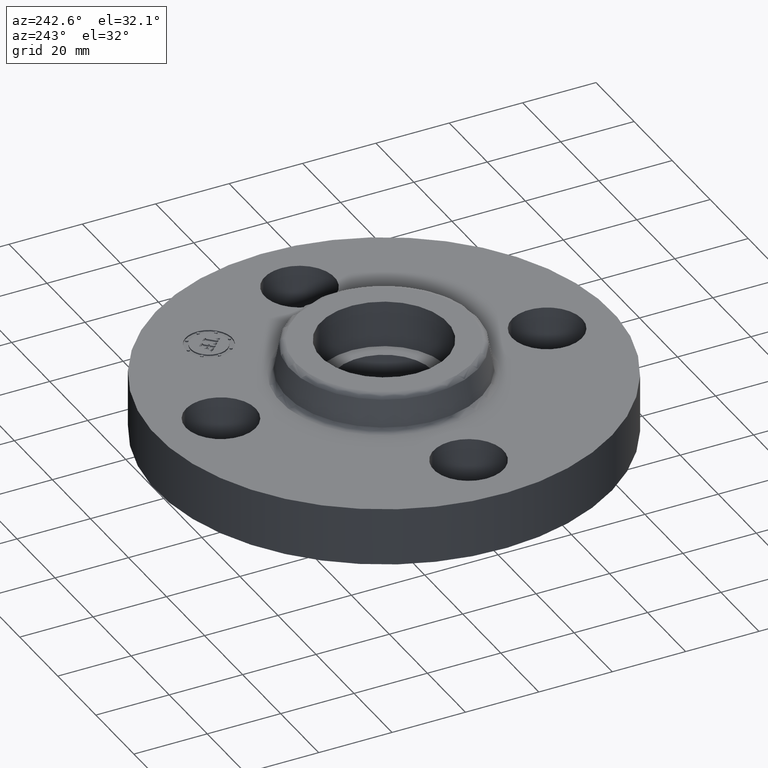
[diagram: clean part render]
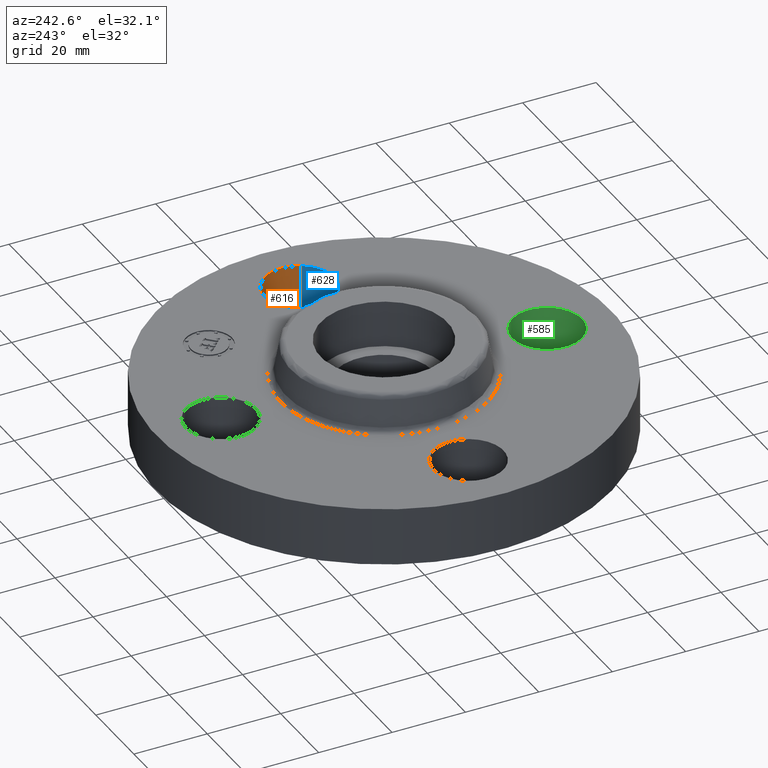
[diagram: same view with three faces highlighted in distinct colors, each labeled with its STEP entity id]
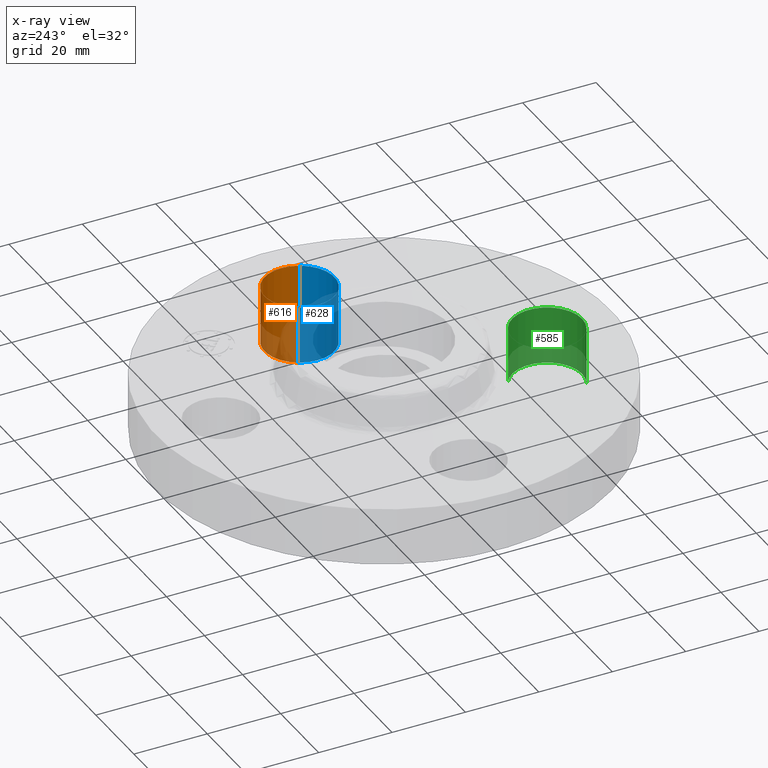
[diagram: x-ray of the same camera — body ghosted, the three highlighted faces saturated]
A machine part, auxiliary view with three faces highlighted in distinct colors.
The next image is the same camera in x-ray (body ghosted, the three faces saturated) — at least one of them is partly hidden behind the body in this view.
Their STEP definitions:

[orange] entity #616 — the highlighted cylindrical surface (partial cylindrical patch) has radius 9.525 mm, axis along (0, -0, -1).
#177=AXIS2_PLACEMENT_3D('Circle Axis2P3D',#175,#176,$) ;
#589=AXIS2_PLACEMENT_3D('Cylinder Axis2P3D',#586,#587,#588) ;
#607=AXIS2_PLACEMENT_3D('Circle Axis2P3D',#605,#606,$) ;
#170=CARTESIAN_POINT('Vertex',(2.07909346072,-0.179784576977,0.)) ;
#172=CARTESIAN_POINT('Vertex',(1.4209065393,0.179784576977,0.)) ;
#175=CARTESIAN_POINT('Axis2P3D Location',(1.75000000001,0.,0.)) ;
#586=CARTESIAN_POINT('Axis2P3D Location',(1.75000000001,0.,0.616062992128)) ;
#591=CARTESIAN_POINT('Line Origine',(1.4209065393,0.179784576977,0.310000000001)) ;
#595=CARTESIAN_POINT('Vertex',(1.4209065393,0.179784576977,0.620000000002)) ;
#598=CARTESIAN_POINT('Line Origine',(2.07909346072,-0.179784576977,0.310000000001)) ;
#602=CARTESIAN_POINT('Vertex',(2.07909346072,-0.179784576977,0.620000000002)) ;
#605=CARTESIAN_POINT('Axis2P3D Location',(1.75000000001,0.,0.620000000002)) ;
#176=DIRECTION('Axis2P3D Direction',(0.,0.,-0.0393700787402)) ;
#587=DIRECTION('Axis2P3D Direction',(0.,-0.,-0.0393700787402)) ;
#588=DIRECTION('Axis2P3D XDirection',(0.0345504945626,-0.0188750212049,0.)) ;
#592=DIRECTION('Vector Direction',(0.,0.,-0.0393700787402)) ;
#599=DIRECTION('Vector Direction',(0.,0.,-0.0393700787402)) ;
#606=DIRECTION('Axis2P3D Direction',(0.,-0.,-0.0393700787402)) ;
#593=VECTOR('Line Direction',#592,0.0393700787402) ;
#600=VECTOR('Line Direction',#599,0.0393700787402) ;
#611=ORIENTED_EDGE('',*,*,#597,.F.) ;
#612=ORIENTED_EDGE('',*,*,#179,.T.) ;
#613=ORIENTED_EDGE('',*,*,#604,.T.) ;
#614=ORIENTED_EDGE('',*,*,#609,.F.) ;
#616=ADVANCED_FACE('PartBody',(#615),#590,.F.) ;
#178=CIRCLE('generated circle',#177,0.375000000001) ;
#608=CIRCLE('generated circle',#607,0.375000000001) ;
#590=CYLINDRICAL_SURFACE('generated cylinder',#589,0.375000000001) ;
#179=EDGE_CURVE('',#173,#171,#178,.T.) ;
#597=EDGE_CURVE('',#173,#596,#594,.F.) ;
#604=EDGE_CURVE('',#171,#603,#601,.F.) ;
#609=EDGE_CURVE('',#596,#603,#608,.T.) ;
#610=EDGE_LOOP('',(#611,#612,#613,#614)) ;
#615=FACE_OUTER_BOUND('',#610,.T.) ;
#594=LINE('Line',#591,#593) ;
#601=LINE('Line',#598,#600) ;
#171=VERTEX_POINT('',#170) ;
#173=VERTEX_POINT('',#172) ;
#596=VERTEX_POINT('',#595) ;
#603=VERTEX_POINT('',#602) ;

[blue] entity #628 — the highlighted cylindrical surface (partial cylindrical patch) has radius 9.525 mm, axis along (0, -0, -1).
#168=AXIS2_PLACEMENT_3D('Circle Axis2P3D',#166,#167,$) ;
#589=AXIS2_PLACEMENT_3D('Cylinder Axis2P3D',#586,#587,#588) ;
#619=AXIS2_PLACEMENT_3D('Circle Axis2P3D',#617,#618,$) ;
#166=CARTESIAN_POINT('Axis2P3D Location',(1.75000000001,1.39870617276E-016,0.)) ;
#170=CARTESIAN_POINT('Vertex',(2.07909346072,-0.179784576977,0.)) ;
#172=CARTESIAN_POINT('Vertex',(1.4209065393,0.179784576977,0.)) ;
#586=CARTESIAN_POINT('Axis2P3D Location',(1.75000000001,0.,0.616062992128)) ;
#591=CARTESIAN_POINT('Line Origine',(1.4209065393,0.179784576977,0.310000000001)) ;
#595=CARTESIAN_POINT('Vertex',(1.4209065393,0.179784576977,0.620000000002)) ;
#598=CARTESIAN_POINT('Line Origine',(2.07909346072,-0.179784576977,0.310000000001)) ;
#602=CARTESIAN_POINT('Vertex',(2.07909346072,-0.179784576977,0.620000000002)) ;
#617=CARTESIAN_POINT('Axis2P3D Location',(1.75000000001,0.,0.620000000002)) ;
#167=DIRECTION('Axis2P3D Direction',(0.,0.,-0.0393700787402)) ;
#587=DIRECTION('Axis2P3D Direction',(0.,-0.,-0.0393700787402)) ;
#588=DIRECTION('Axis2P3D XDirection',(0.0345504945626,-0.0188750212049,0.)) ;
#592=DIRECTION('Vector Direction',(0.,0.,-0.0393700787402)) ;
#599=DIRECTION('Vector Direction',(0.,0.,-0.0393700787402)) ;
#618=DIRECTION('Axis2P3D Direction',(0.,-0.,-0.0393700787402)) ;
#593=VECTOR('Line Direction',#592,0.0393700787402) ;
#600=VECTOR('Line Direction',#599,0.0393700787402) ;
#623=ORIENTED_EDGE('',*,*,#604,.F.) ;
#624=ORIENTED_EDGE('',*,*,#174,.T.) ;
#625=ORIENTED_EDGE('',*,*,#597,.T.) ;
#626=ORIENTED_EDGE('',*,*,#621,.F.) ;
#628=ADVANCED_FACE('PartBody',(#627),#590,.F.) ;
#169=CIRCLE('generated circle',#168,0.375000000001) ;
#620=CIRCLE('generated circle',#619,0.375000000001) ;
#590=CYLINDRICAL_SURFACE('generated cylinder',#589,0.375000000001) ;
#174=EDGE_CURVE('',#171,#173,#169,.T.) ;
#597=EDGE_CURVE('',#173,#596,#594,.F.) ;
#604=EDGE_CURVE('',#171,#603,#601,.F.) ;
#621=EDGE_CURVE('',#603,#596,#620,.T.) ;
#622=EDGE_LOOP('',(#623,#624,#625,#626)) ;
#627=FACE_OUTER_BOUND('',#622,.T.) ;
#594=LINE('Line',#591,#593) ;
#601=LINE('Line',#598,#600) ;
#171=VERTEX_POINT('',#170) ;
#173=VERTEX_POINT('',#172) ;
#596=VERTEX_POINT('',#595) ;
#603=VERTEX_POINT('',#602) ;

[green] entity #585 — the highlighted cylindrical surface (partial cylindrical patch) has radius 9.525 mm, axis along (0, -0, -1).
#190=AXIS2_PLACEMENT_3D('Circle Axis2P3D',#188,#189,$) ;
#546=AXIS2_PLACEMENT_3D('Cylinder Axis2P3D',#543,#544,#545) ;
#576=AXIS2_PLACEMENT_3D('Circle Axis2P3D',#574,#575,$) ;
#188=CARTESIAN_POINT('Axis2P3D Location',(0.,-1.75000000001,0.)) ;
#192=CARTESIAN_POINT('Vertex',(0.179784576977,-1.4209065393,0.)) ;
#194=CARTESIAN_POINT('Vertex',(-0.179784576977,-2.07909346072,0.)) ;
#543=CARTESIAN_POINT('Axis2P3D Location',(-1.72584639625E-016,-1.75000000001,0.616062992128)) ;
#548=CARTESIAN_POINT('Line Origine',(-0.179784576977,-2.07909346072,0.310000000001)) ;
#552=CARTESIAN_POINT('Vertex',(-0.179784576977,-2.07909346072,0.620000000002)) ;
#555=CARTESIAN_POINT('Line Origine',(0.179784576977,-1.4209065393,0.310000000001)) ;
#559=CARTESIAN_POINT('Vertex',(0.179784576977,-1.4209065393,0.620000000002)) ;
#574=CARTESIAN_POINT('Axis2P3D Location',(-1.72584639625E-016,-1.75000000001,0.620000000002)) ;
#189=DIRECTION('Axis2P3D Direction',(0.,0.,-0.0393700787402)) ;
#544=DIRECTION('Axis2P3D Direction',(0.,-0.,-0.0393700787402)) ;
#545=DIRECTION('Axis2P3D XDirection',(0.0188750212049,0.0345504945626,-0.)) ;
#549=DIRECTION('Vector Direction',(0.,0.,-0.0393700787402)) ;
#556=DIRECTION('Vector Direction',(0.,0.,-0.0393700787402)) ;
#575=DIRECTION('Axis2P3D Direction',(0.,-0.,-0.0393700787402)) ;
#550=VECTOR('Line Direction',#549,0.0393700787402) ;
#557=VECTOR('Line Direction',#556,0.0393700787402) ;
#580=ORIENTED_EDGE('',*,*,#561,.F.) ;
#581=ORIENTED_EDGE('',*,*,#196,.T.) ;
#582=ORIENTED_EDGE('',*,*,#554,.T.) ;
#583=ORIENTED_EDGE('',*,*,#578,.F.) ;
#585=ADVANCED_FACE('PartBody',(#584),#547,.F.) ;
#191=CIRCLE('generated circle',#190,0.375000000001) ;
#577=CIRCLE('generated circle',#576,0.375000000001) ;
#547=CYLINDRICAL_SURFACE('generated cylinder',#546,0.375000000001) ;
#196=EDGE_CURVE('',#193,#195,#191,.T.) ;
#554=EDGE_CURVE('',#195,#553,#551,.F.) ;
#561=EDGE_CURVE('',#193,#560,#558,.F.) ;
#578=EDGE_CURVE('',#560,#553,#577,.T.) ;
#579=EDGE_LOOP('',(#580,#581,#582,#583)) ;
#584=FACE_OUTER_BOUND('',#579,.T.) ;
#551=LINE('Line',#548,#550) ;
#558=LINE('Line',#555,#557) ;
#193=VERTEX_POINT('',#192) ;
#195=VERTEX_POINT('',#194) ;
#553=VERTEX_POINT('',#552) ;
#560=VERTEX_POINT('',#559) ;